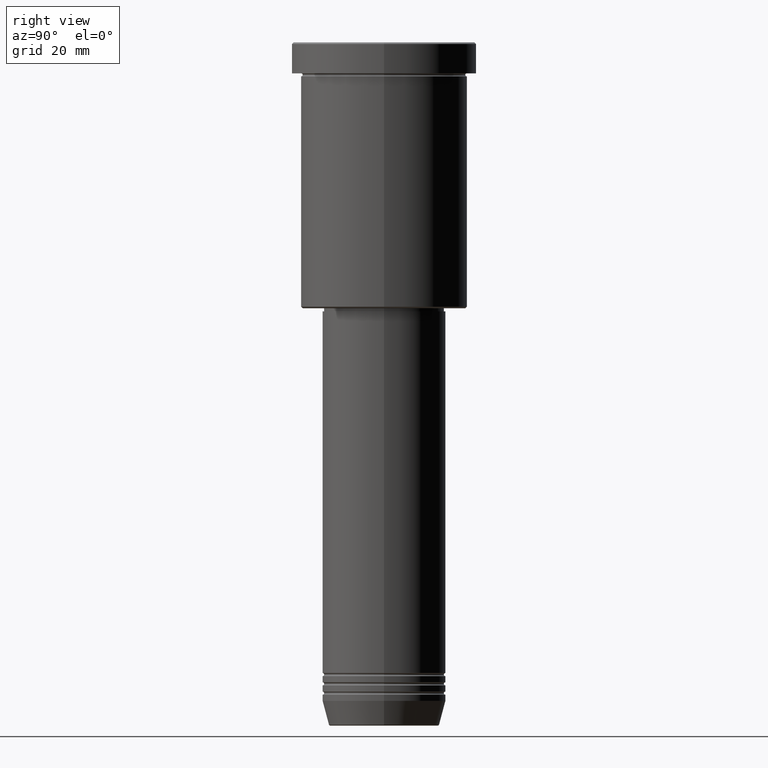
[diagram: clean part render]
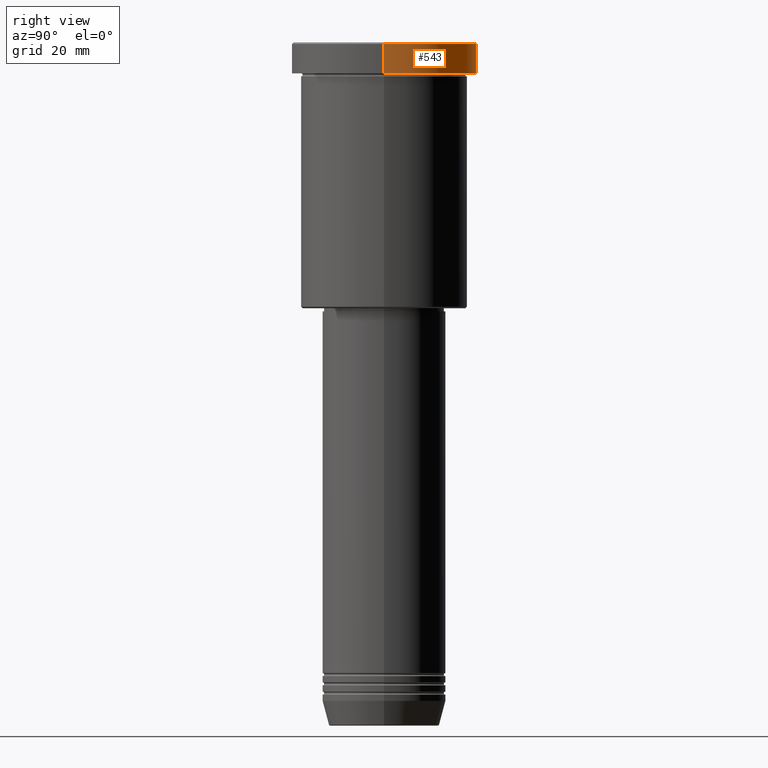
[diagram: same view with one face highlighted and labeled with its STEP entity id]
A machine part, right view. The second image highlights one B-rep face of the part: STEP entity #543.
In plain terms, the highlighted cylindrical surface (partial cylindrical patch) has radius 30 mm, axis along (-0, -0, 1).
Its self-contained STEP definition (entity closure, byte-faithful):
#13 = EDGE_CURVE ( 'NONE', #188, #460, #370, .T. ) ;
#16 = CARTESIAN_POINT ( 'NONE',  ( 30.00000000000000000, 0.000000000000000000, -9.999999999999992895 ) ) ;
#29 = ORIENTED_EDGE ( 'NONE', *, *, #13, .T. ) ;
#52 = CARTESIAN_POINT ( 'NONE',  ( -30.00000000000000000, 3.673940397442059178E-15, -0.4999999999999796274 ) ) ;
#80 = DIRECTION ( 'NONE',  ( 1.000000000000000000, 0.000000000000000000, 0.000000000000000000 ) ) ;
#188 = VERTEX_POINT ( 'NONE', #52 ) ;
#251 = DIRECTION ( 'NONE',  ( -0.000000000000000000, -0.000000000000000000, 1.000000000000000000 ) ) ;
#253 = AXIS2_PLACEMENT_3D ( 'NONE', #1157, #872, #345 ) ;
#287 = ORIENTED_EDGE ( 'NONE', *, *, #1059, .T. ) ;
#345 = DIRECTION ( 'NONE',  ( 1.000000000000000000, 0.000000000000000000, 0.000000000000000000 ) ) ;
#359 = CYLINDRICAL_SURFACE ( 'NONE', #253, 30.00000000000000000 ) ;
#370 = CIRCLE ( 'NONE', #917, 30.00000000000000000 ) ;
#373 = AXIS2_PLACEMENT_3D ( 'NONE', #695, #612, #80 ) ;
#394 = EDGE_CURVE ( 'NONE', #1135, #584, #482, .T. ) ;
#460 = VERTEX_POINT ( 'NONE', #515 ) ;
#482 = CIRCLE ( 'NONE', #373, 30.00000000000000000 ) ;
#487 = DIRECTION ( 'NONE',  ( 1.000000000000000000, 0.000000000000000000, 0.000000000000000000 ) ) ;
#512 = CARTESIAN_POINT ( 'NONE',  ( -30.00000000000000000, 3.673940397442059178E-15, -9.999999999999992895 ) ) ;
#514 = EDGE_CURVE ( 'NONE', #1135, #460, #1062, .T. ) ;
#515 = CARTESIAN_POINT ( 'NONE',  ( 30.00000000000000000, 0.000000000000000000, -0.4999999999999796274 ) ) ;
#519 = VECTOR ( 'NONE', #1154, 1000.000000000000000 ) ;
#535 = CARTESIAN_POINT ( 'NONE',  ( 30.00000000000000000, 0.000000000000000000, 0.000000000000000000 ) ) ;
#540 = LINE ( 'NONE', #791, #519 ) ;
#543 = ADVANCED_FACE ( 'NONE', ( #793 ), #359, .T. ) ;
#561 = ORIENTED_EDGE ( 'NONE', *, *, #394, .T. ) ;
#584 = VERTEX_POINT ( 'NONE', #512 ) ;
#591 = EDGE_LOOP ( 'NONE', ( #561, #287, #29, #752 ) ) ;
#612 = DIRECTION ( 'NONE',  ( -0.000000000000000000, -0.000000000000000000, 1.000000000000000000 ) ) ;
#613 = VECTOR ( 'NONE', #251, 1000.000000000000000 ) ;
#695 = CARTESIAN_POINT ( 'NONE',  ( 0.000000000000000000, 0.000000000000000000, -9.999999999999992895 ) ) ;
#752 = ORIENTED_EDGE ( 'NONE', *, *, #514, .F. ) ;
#791 = CARTESIAN_POINT ( 'NONE',  ( -30.00000000000000000, 3.673940397442059178E-15, 0.000000000000000000 ) ) ;
#793 = FACE_OUTER_BOUND ( 'NONE', #591, .T. ) ;
#872 = DIRECTION ( 'NONE',  ( -0.000000000000000000, -0.000000000000000000, 1.000000000000000000 ) ) ;
#917 = AXIS2_PLACEMENT_3D ( 'NONE', #1098, #1103, #487 ) ;
#1059 = EDGE_CURVE ( 'NONE', #584, #188, #540, .T. ) ;
#1062 = LINE ( 'NONE', #535, #613 ) ;
#1098 = CARTESIAN_POINT ( 'NONE',  ( 0.000000000000000000, 0.000000000000000000, -0.4999999999999796274 ) ) ;
#1103 = DIRECTION ( 'NONE',  ( 0.000000000000000000, 0.000000000000000000, -1.000000000000000000 ) ) ;
#1135 = VERTEX_POINT ( 'NONE', #16 ) ;
#1154 = DIRECTION ( 'NONE',  ( -0.000000000000000000, -0.000000000000000000, 1.000000000000000000 ) ) ;
#1157 = CARTESIAN_POINT ( 'NONE',  ( 0.000000000000000000, 0.000000000000000000, 0.000000000000000000 ) ) ;